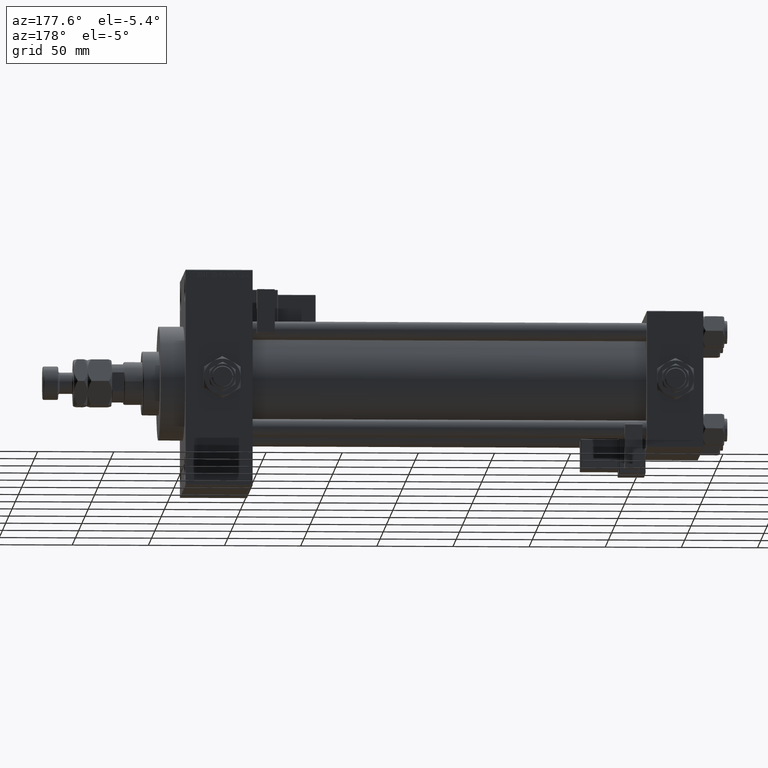
[diagram: clean part render]
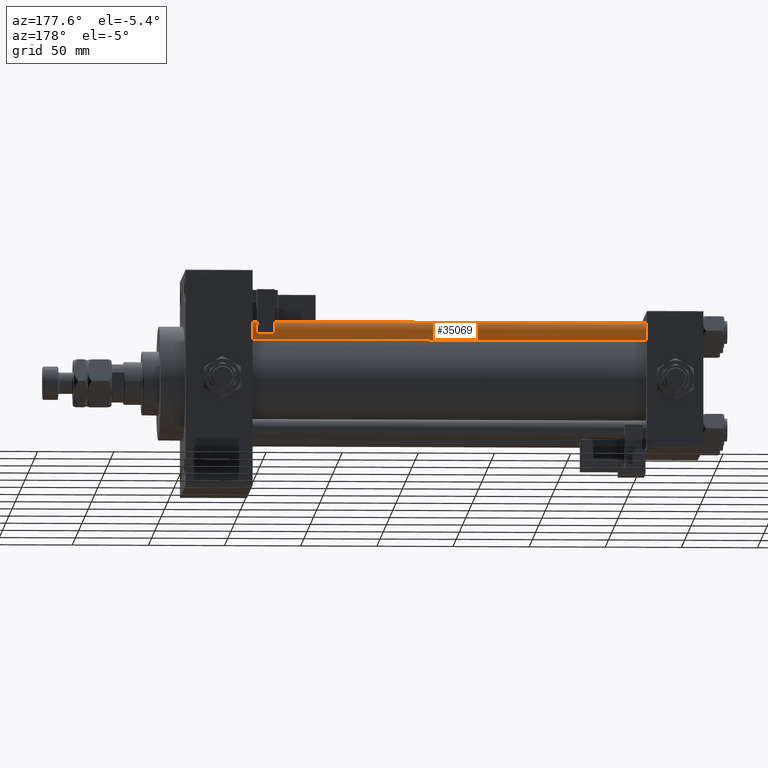
[diagram: same view with one face highlighted and labeled with its STEP entity id]
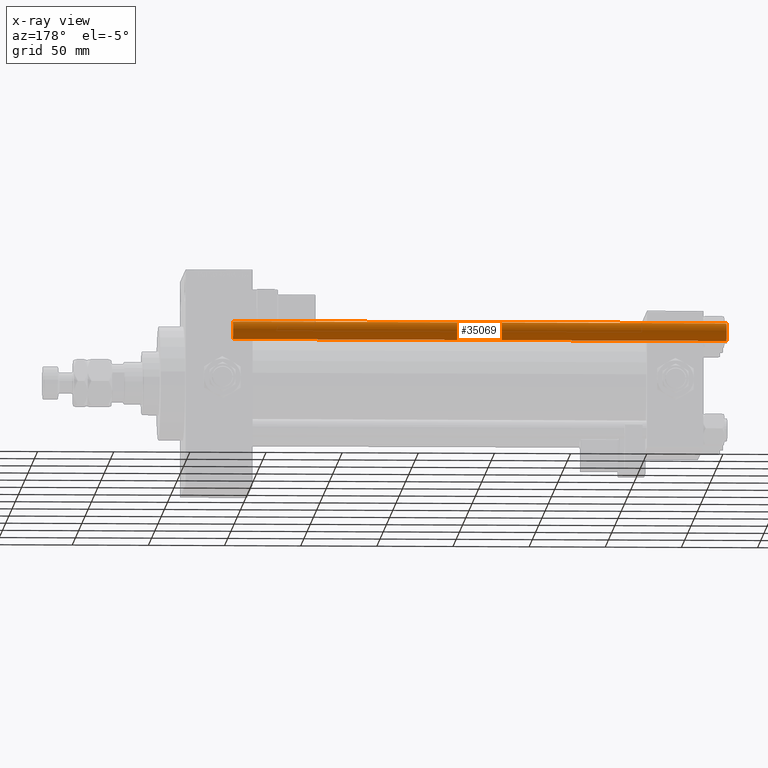
[diagram: x-ray of the same camera — body ghosted, the highlighted face saturated]
A machine part, auxiliary view. The second image highlights one B-rep face of the part: STEP entity #35069.
The next image is the same camera in x-ray: the body ghosted, the highlighted face saturated — about 0% of this face is hidden behind the body in this view.
In plain terms, the highlighted cylindrical surface (edge-blend (fillet) strip) has radius 6 mm, axis along (-1, -0, 0).
Its self-contained STEP definition (entity closure, byte-faithful):
#1423 = VERTEX_POINT ( 'NONE', #36181 ) ;
#1429 = DIRECTION ( 'NONE',  ( -0.000000000000000000, -0.000000000000000000, -1.000000000000000000 ) ) ;
#2105 = VERTEX_POINT ( 'NONE', #52980 ) ;
#2881 = EDGE_CURVE ( 'NONE', #1423, #2105, #49720, .T. ) ;
#5035 = VECTOR ( 'NONE', #46385, 1000.000000000000000 ) ;
#7521 = VERTEX_POINT ( 'NONE', #25974 ) ;
#9614 = CARTESIAN_POINT ( 'NONE',  ( 6.000000000000000888, 7.347880794884120722E-16, 324.5000000000001137 ) ) ;
#10292 = CARTESIAN_POINT ( 'NONE',  ( 0.000000000000000000, 0.000000000000000000, 325.0000000000000000 ) ) ;
#13106 = DIRECTION ( 'NONE',  ( -0.000000000000000000, -0.000000000000000000, -1.000000000000000000 ) ) ;
#14032 = CARTESIAN_POINT ( 'NONE',  ( 0.000000000000000000, 0.000000000000000000, 0.5000000000000004441 ) ) ;
#14326 = FACE_OUTER_BOUND ( 'NONE', #52611, .T. ) ;
#14552 = DIRECTION ( 'NONE',  ( -0.000000000000000000, -0.000000000000000000, 1.000000000000000000 ) ) ;
#16280 = ORIENTED_EDGE ( 'NONE', *, *, #17594, .T. ) ;
#17594 = EDGE_CURVE ( 'NONE', #7521, #33732, #53024, .T. ) ;
#19987 = ORIENTED_EDGE ( 'NONE', *, *, #47114, .T. ) ;
#20841 = VECTOR ( 'NONE', #13106, 1000.000000000000000 ) ;
#21129 = EDGE_CURVE ( 'NONE', #7521, #2105, #29958, .T. ) ;
#21399 = AXIS2_PLACEMENT_3D ( 'NONE', #14032, #14552, #34971 ) ;
#22202 = ORIENTED_EDGE ( 'NONE', *, *, #2881, .T. ) ;
#22396 = CYLINDRICAL_SURFACE ( 'NONE', #46711, 6.000000000000000888 ) ;
#25479 = CARTESIAN_POINT ( 'NONE',  ( 6.000000000000000888, 7.347880794884120722E-16, 325.0000000000000000 ) ) ;
#25974 = CARTESIAN_POINT ( 'NONE',  ( -6.000000000000000888, 0.000000000000000000, 324.5000000000001137 ) ) ;
#26679 = DIRECTION ( 'NONE',  ( -1.000000000000000000, 0.000000000000000000, 0.000000000000000000 ) ) ;
#27854 = DIRECTION ( 'NONE',  ( 1.000000000000000000, 0.000000000000000000, 0.000000000000000000 ) ) ;
#29958 = LINE ( 'NONE', #42889, #5035 ) ;
#33732 = VERTEX_POINT ( 'NONE', #9614 ) ;
#34971 = DIRECTION ( 'NONE',  ( 1.000000000000000000, 0.000000000000000000, 0.000000000000000000 ) ) ;
#35069 = ADVANCED_FACE ( 'NONE', ( #14326 ), #22396, .T. ) ;
#35894 = DIRECTION ( 'NONE',  ( 0.000000000000000000, 0.000000000000000000, -1.000000000000000000 ) ) ;
#36181 = CARTESIAN_POINT ( 'NONE',  ( 6.000000000000000888, 7.347880794884120722E-16, 0.5000000000000004441 ) ) ;
#39960 = CARTESIAN_POINT ( 'NONE',  ( 0.000000000000000000, 0.000000000000000000, 324.5000000000001137 ) ) ;
#42889 = CARTESIAN_POINT ( 'NONE',  ( -6.000000000000000888, 0.000000000000000000, 325.0000000000000000 ) ) ;
#46130 = AXIS2_PLACEMENT_3D ( 'NONE', #39960, #35894, #27854 ) ;
#46385 = DIRECTION ( 'NONE',  ( -0.000000000000000000, -0.000000000000000000, -1.000000000000000000 ) ) ;
#46711 = AXIS2_PLACEMENT_3D ( 'NONE', #10292, #1429, #26679 ) ;
#46980 = LINE ( 'NONE', #25479, #20841 ) ;
#47114 = EDGE_CURVE ( 'NONE', #33732, #1423, #46980, .T. ) ;
#49720 = CIRCLE ( 'NONE', #21399, 6.000000000000000888 ) ;
#50247 = ORIENTED_EDGE ( 'NONE', *, *, #21129, .F. ) ;
#52611 = EDGE_LOOP ( 'NONE', ( #16280, #19987, #22202, #50247 ) ) ;
#52980 = CARTESIAN_POINT ( 'NONE',  ( -6.000000000000000888, 0.000000000000000000, 0.5000000000000004441 ) ) ;
#53024 = CIRCLE ( 'NONE', #46130, 6.000000000000000888 ) ;